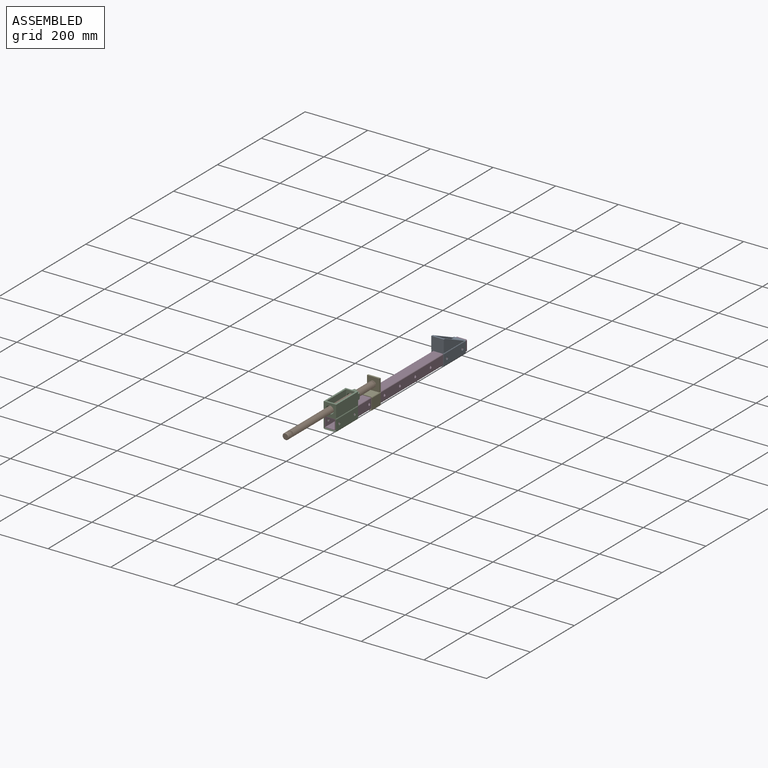
[diagram: assembled view]
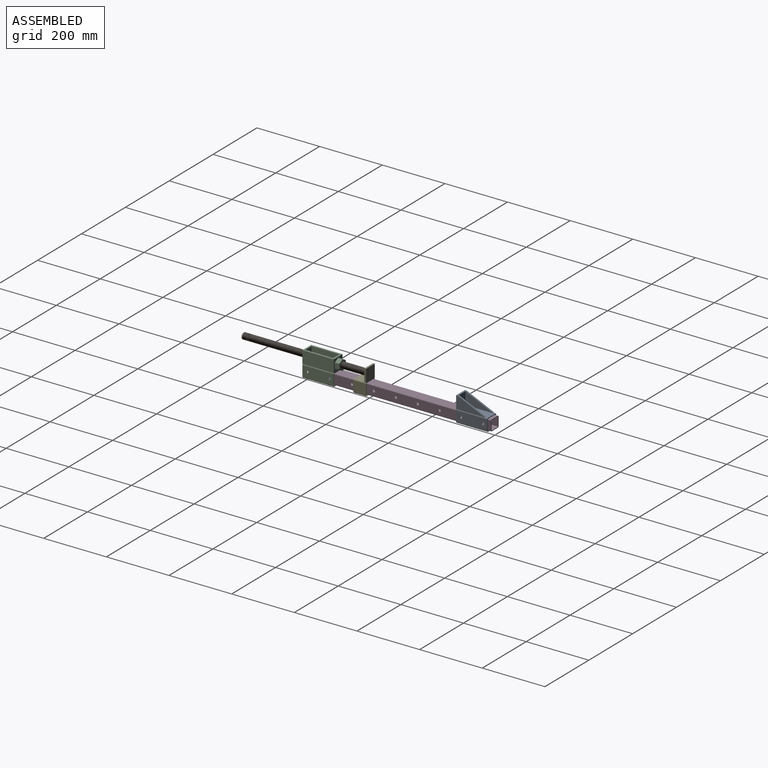
[diagram: assembled view, second angle]
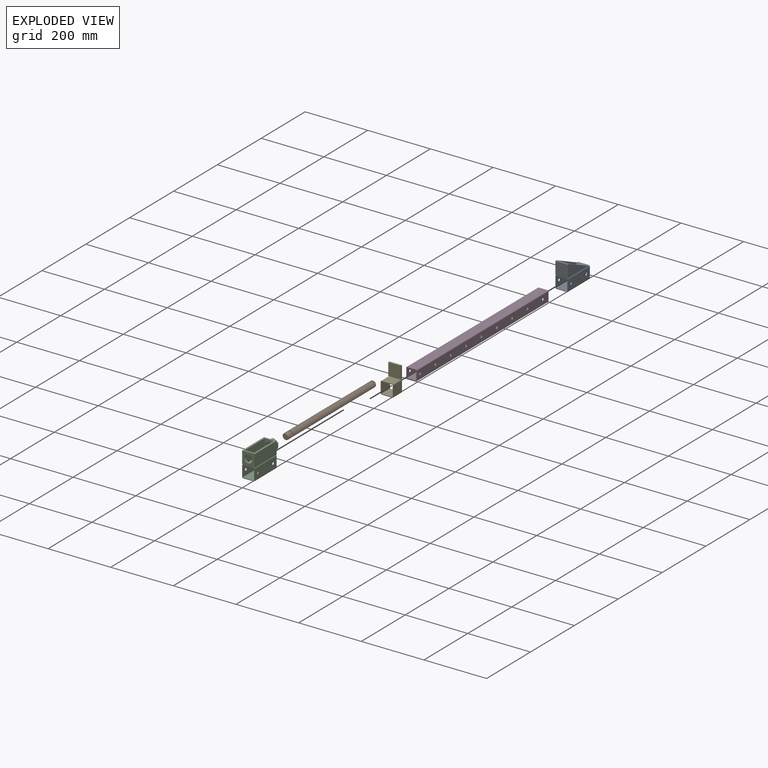
[diagram: exploded view]
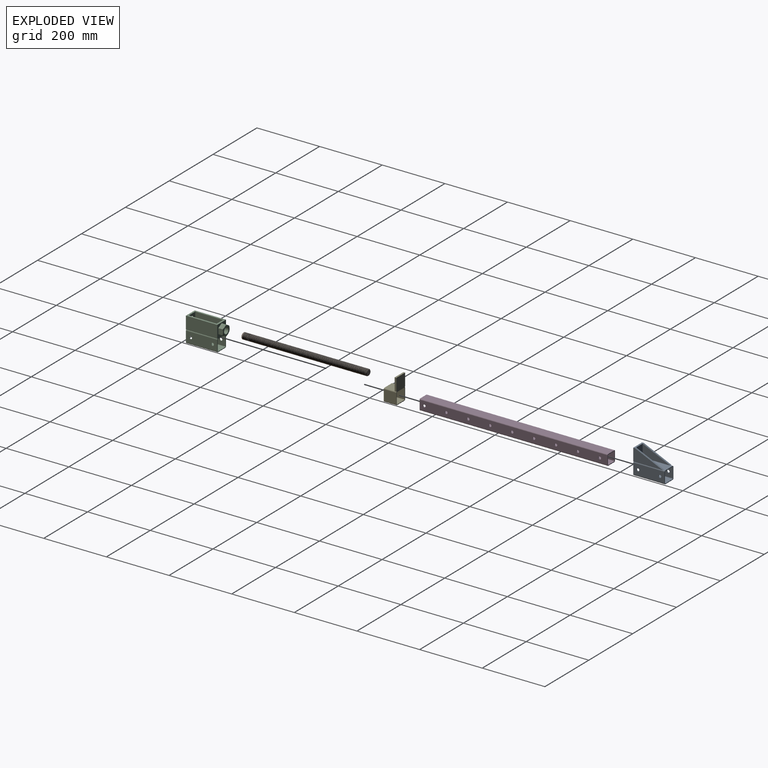
[diagram: exploded view, second angle]
ASSEMBLY  parts=5 mates=5
PART A: 32 faces, bbox 40x100x80 mm
  f0: plane 100x33mm, normal (1,0,0), area 3186.5mm2, adj f1,f15,f16,f17,f28,f29
  f1: cylinder r=3.5mm len=100mm, axis (0,-1,0), area 549.8mm2, adj f0,f2,f16,f17,f18
  f2: plane 94.5x33mm, normal (0,0,1), area 2762.5mm2, adj f1,f3,f16,f21,f22,f23,f30,f31
  f3: cylinder r=3.5mm len=100mm, axis (0,-1,0), area 549.8mm2, adj f2,f4,f16,f17,f25
  f4: plane 100x33mm, normal (-1,0,0), area 3186.5mm2, adj f3,f5,f16,f17,f26,f27
  f5: cylinder r=3.5mm len=100mm, axis (0,-1,0), area 549.8mm2, adj f4,f6,f16,f17
  f6: plane 100x33mm, normal (0,0,-1), area 3300mm2, adj f5,f15,f16,f17
  f7: cylinder r=1.5mm len=100mm, axis (0,-1,0), area 235.6mm2, adj f8,f14,f16,f17
  f8: plane 100x33mm, normal (-1,0,0), area 3186.5mm2, adj f7,f9,f16,f17,f28,f29
  f9: cylinder r=1.5mm len=100mm, axis (0,-1,0), area 235.6mm2, adj f8,f10,f16,f17
  f10: plane 100x33mm, normal (0,0,1), area 3300mm2, adj f9,f11,f16,f17
  f11: cylinder r=1.5mm len=100mm, axis (0,-1,0), area 235.6mm2, adj f10,f12,f16,f17
  f12: plane 100x33mm, normal (1,0,0), area 3186.5mm2, adj f11,f13,f16,f17,f26,f27
  f13: cylinder r=1.5mm len=100mm, axis (0,-1,0), area 235.6mm2, adj f12,f14,f16,f17
  f14: plane 100x33mm, normal (0,0,-1), area 3300mm2, adj f7,f13,f16,f17
  f15: cylinder r=3.5mm len=100mm, axis (0,-1,0), area 549.8mm2, adj f0,f6,f16,f17
  f16: plane 40x40mm, normal (0,1,0), area 295.4mm2, adj f0,f1,f2,f3,f4,f5,f6,f7
  f17: plane 80x40mm, normal (0,-1,0), area 1895.4mm2, adj f0,f1,f3,f4,f5,f6,f7,f8
  f18: plane 94.5x3.5mm, normal (0,0,-1), area 330.8mm2, adj f1,f17,f20,f31
  f19: plane 94.5x40mm, normal (-1,0,0), area 2000mm2, adj f17,f24,f25,f30
  f20: plane 94.5x40mm, normal (1,0,0), area 2000mm2, adj f17,f18,f24,f31
  f21: plane 89x40mm, normal (-1,0,0), area 1780mm2, adj f2,f22,f31
  f22: plane 40x29mm, normal (0,1,0), area 1160mm2, adj f2,f21,f23,f24
  f23: plane 89x40mm, normal (1,0,0), area 1780mm2, adj f2,f22,f30
  f24: plane 40x5.5mm, normal (0,0,1), area 220mm2, adj f17,f19,f20,f22,f30,f31
  f25: plane 94.5x3.5mm, normal (0,0,-1), area 330.8mm2, adj f3,f17,f19,f30
  f26: cylinder r=4.25mm len=8.5mm, axis (-1,0,0), area 53.4mm2, adj f4,f12
  f27: cylinder r=4.25mm len=8.5mm, axis (-1,0,0), area 53.4mm2, adj f4,f12
  f28: cylinder r=4.25mm len=8.5mm, axis (-1,0,0), area 53.4mm2, adj f0,f8
  f29: cylinder r=4.25mm len=8.5mm, axis (-1,0,0), area 53.4mm2, adj f0,f8
  f30: plane 89x40mm, normal (0,0.41,0.91), area 536.7mm2, adj f2,f19,f23,f24,f25
  f31: plane 89x40mm, normal (0,0.41,0.91), area 536.7mm2, adj f2,f18,f20,f21,f24
PART B: 25 faces, bbox 22.1x401.4x22.7 mm
  f0: cylinder r=10mm len=20mm, axis (0,-1,0), area 10.4mm2, adj f8,f15,f23
  f1: cylinder r=10mm len=20mm, axis (0,-1,0), area 10.9mm2, adj f9,f16,f23
  f2: cylinder r=10mm len=20mm, axis (0,-1,0), area 195.8mm2, adj f3,f9,f17,f21,f22
  f3: cylinder r=10mm len=9.91mm, axis (0,-1,0), area 2.7mm2, adj f2,f9,f17,f23
  f4: cylinder r=10mm len=20mm, axis (0,-1,0), area 10.7mm2, adj f7,f14,f23
  f5: cylinder r=10mm len=382.88mm, axis (0,-1,0), area -2666.6mm2, adj f6,f14,f20,f23
  f6: bspline ~386.82x22.59mm, area 17315.9mm2, adj f5,f10,f19,f20,f23
  f7: bspline ~22.59x21.96mm, area 98.2mm2, adj f4,f11,f23
  f8: bspline ~22.59x21.96mm, area 96.5mm2, adj f0,f12,f23
  f9: bspline ~22.59x21.96mm, area 218.5mm2, adj f1,f2,f3,f13,f22,f23
  f10: bspline ~386.6x18.75mm, area 3334.8mm2, adj f6,f14,f19,f23
  f11: bspline ~18.75x18.23mm, area 18.3mm2, adj f7,f15,f23
  f12: bspline ~18.75x18.23mm, area 18.3mm2, adj f8,f16,f23
  f13: bspline ~18.75x18.23mm, area 42mm2, adj f9,f17,f22,f23
  f14: bspline ~387.23x22.59mm, area 17427.3mm2, adj f4,f5,f10,f19,f20,f23
  f15: bspline ~22.59x21.96mm, area 96.3mm2, adj f0,f11,f23
  f16: bspline ~22.59x21.96mm, area 98.9mm2, adj f1,f12,f23
  f17: bspline ~22.59x21.96mm, area 220.9mm2, adj f2,f3,f13,f22,f23
  f18: plane 17x17mm, normal (0,1,0), area 227mm2, adj f21
  f19: plane 17.14x16.84mm, normal (0,-1,0), area 224.5mm2, adj f6,f10,f14,f20
  f20: cone r=8.5mm half-angle=45deg, axis (0,1,0), area 51.1mm2, adj f5,f6,f14,f19
  f21: cone r=10mm half-angle=45deg, axis (0,-1,0), area 123.3mm2, adj f2,f18
  f22: plane 2.33x1.82mm, normal (0,0,1), area 2.3mm2, adj f2,f9,f13,f17
  f23: cylinder r=4.25mm len=9.91mm, axis (-1,0,0), area 233.2mm2, adj f0,f1,f3,f4,f5,f6,f7,f8
  f24: plane 8.5x8.5mm, normal (1,0,0), area 56.7mm2, adj f23
PART C: 48 faces, bbox 40x115x80 mm
  f0: plane 30x30mm, normal (0,-1,0), area 392.7mm2, adj f39,f42,f43,f44,f45,f46,f47
  f1: plane 100x33mm, normal (1,0,0), area 3186.5mm2, adj f2,f15,f16,f17,f20,f21
  f2: cylinder r=3.5mm len=100mm, axis (0,-1,0), area 549.8mm2, adj f1,f16,f17,f22
  f3: cylinder r=3.5mm len=100mm, axis (0,-1,0), area 549.8mm2, adj f4,f16,f17,f30
  f4: plane 100x33mm, normal (-1,0,0), area 3186.5mm2, adj f3,f5,f16,f17,f18,f19
  f5: cylinder r=3.5mm len=100mm, axis (0,-1,0), area 549.8mm2, adj f4,f6,f16,f17
  f6: plane 100x33mm, normal (0,0,-1), area 3300mm2, adj f5,f15,f16,f17
  f7: cylinder r=1.5mm len=100mm, axis (0,-1,0), area 235.6mm2, adj f8,f14,f16,f17
  f8: plane 100x33mm, normal (-1,0,0), area 3186.5mm2, adj f7,f9,f16,f17,f20,f21
  f9: cylinder r=1.5mm len=100mm, axis (0,-1,0), area 235.6mm2, adj f8,f10,f16,f17
  f10: plane 100x33mm, normal (0,0,1), area 3300mm2, adj f9,f11,f16,f17
  f11: cylinder r=1.5mm len=100mm, axis (0,-1,0), area 235.6mm2, adj f10,f12,f16,f17
  f12: plane 100x33mm, normal (1,0,0), area 3186.5mm2, adj f11,f13,f16,f17,f18,f19
  f13: cylinder r=1.5mm len=100mm, axis (0,-1,0), area 235.6mm2, adj f12,f14,f16,f17
  f14: plane 100x33mm, normal (0,0,-1), area 3300mm2, adj f7,f13,f16,f17
  f15: cylinder r=3.5mm len=100mm, axis (0,-1,0), area 549.8mm2, adj f1,f6,f16,f17
  f16: plane 80x40mm, normal (0,1,0), area 1404.5mm2, adj f1,f2,f3,f4,f5,f6,f7,f8
  f17: plane 80x40mm, normal (0,-1,0), area 1116mm2, adj f1,f2,f3,f4,f5,f6,f7,f8
  f18: cylinder r=4.25mm len=8.5mm, axis (-1,0,0), area 53.4mm2, adj f4,f12
  f19: cylinder r=4.25mm len=8.5mm, axis (-1,0,0), area 53.4mm2, adj f4,f12
  f20: cylinder r=4.25mm len=8.5mm, axis (-1,0,0), area 53.4mm2, adj f1,f8
  f21: cylinder r=4.25mm len=8.5mm, axis (-1,0,0), area 53.4mm2, adj f1,f8
  f22: plane 100x3.5mm, normal (0,0,-1), area 350mm2, adj f2,f16,f17,f27
  f23: plane 40x29mm, normal (0,-1,0), area 669.1mm2, adj f24,f28,f29,f31,f33
  f24: plane 89x40mm, normal (-1,0,0), area 3560mm2, adj f23,f25,f29,f31
  f25: plane 40x29mm, normal (0,1,0), area 669.1mm2, adj f24,f28,f29,f31,f32
  f26: plane 100x40mm, normal (-1,0,0), area 4000mm2, adj f16,f17,f29,f30
  f27: plane 100x40mm, normal (1,0,0), area 4000mm2, adj f16,f17,f22,f29
  f28: plane 89x40mm, normal (1,0,0), area 3560mm2, adj f23,f25,f29,f31
  f29: plane 100x40mm, normal (0,0,1), area 1419mm2, adj f16,f17,f23,f24,f25,f26,f27,f28
  f30: plane 100x3.5mm, normal (0,0,-1), area 350mm2, adj f3,f16,f17,f26
  f31: plane 89x29mm, normal (0,0,1), area 2581mm2, adj f23,f24,f25,f28
  f32: cylinder r=12.5mm len=25mm, axis (0,-1,0), area 432mm2, adj f25,f41
  f33: cylinder r=12.5mm len=25mm, axis (0,-1,0), area 432mm2, adj f16,f23
  f34: plane 15x15mm, normal (0.5,0,-0.87), area 251.8mm2, adj f17,f35,f40,f43,f47
  f35: plane 17.33x15mm, normal (1,0,0), area 251.8mm2, adj f17,f34,f36,f46,f47
  f36: plane 15x15mm, normal (0.5,0,0.87), area 251.8mm2, adj f17,f35,f37,f45,f46
  f37: plane 15x15mm, normal (-0.5,0,0.87), area 251.8mm2, adj f17,f36,f38,f44,f45
  f38: plane 17.33x15mm, normal (-1,0,0), area 251.8mm2, adj f17,f37,f40,f42,f44
  f39: cylinder r=10mm len=20mm, axis (0,1,0), area 942.5mm2, adj f0,f41
  f40: plane 15x15mm, normal (-0.5,0,-0.87), area 251.8mm2, adj f17,f34,f38,f42,f43
  f41: plane 25x25mm, normal (0,1,0), area 176.7mm2, adj f32,f39
  f42: cone r=20mm half-angle=60deg, axis (0,1,0), area 14mm2, adj f0,f38,f40
  f43: cone r=20mm half-angle=60deg, axis (0,1,0), area 14mm2, adj f0,f34,f40
  f44: cone r=20mm half-angle=60deg, axis (0,1,0), area 14mm2, adj f0,f37,f38
  f45: cone r=20mm half-angle=60deg, axis (0,1,0), area 14mm2, adj f0,f36,f37
  f46: cone r=20mm half-angle=60deg, axis (0,1,0), area 14mm2, adj f0,f35,f36
  f47: cone r=20mm half-angle=60deg, axis (0,1,0), area 14mm2, adj f0,f34,f35
PART D: 36 faces, bbox 34x600x34 mm
  f0: plane 600x28mm, normal (0,0,-1), area 16800mm2, adj f1,f15,f16,f17
  f1: cylinder r=3mm len=600mm, axis (0,-1,0), area 2827.4mm2, adj f0,f2,f16,f17
  f2: plane 600x28mm, normal (1,0,0), area 16289.3mm2, adj f1,f3,f16,f17,f27,f28,f29,f30
  f3: cylinder r=3mm len=600mm, axis (0,-1,0), area 2827.4mm2, adj f2,f4,f16,f17
  f4: plane 600x28mm, normal (0,0,1), area 16800mm2, adj f3,f5,f16,f17
  f5: cylinder r=3mm len=600mm, axis (0,-1,0), area 2827.4mm2, adj f4,f6,f16,f17
  f6: plane 600x28mm, normal (-1,0,0), area 16289.3mm2, adj f5,f15,f16,f17,f18,f19,f20,f21
  f7: cylinder r=1mm len=600mm, axis (0,-1,0), area 942.5mm2, adj f8,f14,f16,f17
  f8: plane 600x28mm, normal (-1,0,0), area 16289.3mm2, adj f7,f9,f16,f17,f27,f28,f29,f30
  f9: cylinder r=1mm len=600mm, axis (0,-1,0), area 942.5mm2, adj f8,f10,f16,f17
  f10: plane 600x28mm, normal (0,0,1), area 16800mm2, adj f9,f11,f16,f17
  f11: cylinder r=1mm len=600mm, axis (0,-1,0), area 942.5mm2, adj f10,f12,f16,f17
  f12: plane 600x28mm, normal (1,0,0), area 16289.3mm2, adj f11,f13,f16,f17,f18,f19,f20,f21
  f13: cylinder r=1mm len=600mm, axis (0,-1,0), area 942.5mm2, adj f12,f14,f16,f17
  f14: plane 600x28mm, normal (0,0,-1), area 16800mm2, adj f7,f13,f16,f17
  f15: cylinder r=3mm len=600mm, axis (0,-1,0), area 2827.4mm2, adj f0,f6,f16,f17
  f16: plane 34x34mm, normal (0,1,0), area 249.1mm2, adj f0,f1,f2,f3,f4,f5,f6,f7
  f17: plane 34x34mm, normal (0,-1,0), area 249.1mm2, adj f0,f1,f2,f3,f4,f5,f6,f7
  f18: cylinder r=4.25mm len=8.5mm, axis (-1,0,0), area 53.4mm2, adj f6,f12
  f19: cylinder r=4.25mm len=8.5mm, axis (-1,0,0), area 53.4mm2, adj f6,f12
  f20: cylinder r=4.25mm len=8.5mm, axis (-1,0,0), area 53.4mm2, adj f6,f12
  f21: cylinder r=4.25mm len=8.5mm, axis (-1,0,0), area 53.4mm2, adj f6,f12
  f22: cylinder r=4.25mm len=8.5mm, axis (-1,0,0), area 53.4mm2, adj f6,f12
  f23: cylinder r=4.25mm len=8.5mm, axis (-1,0,0), area 53.4mm2, adj f6,f12
  f24: cylinder r=4.25mm len=8.5mm, axis (-1,0,0), area 53.4mm2, adj f6,f12
  f25: cylinder r=4.25mm len=8.5mm, axis (-1,0,0), area 53.4mm2, adj f6,f12
  f26: cylinder r=4.25mm len=8.5mm, axis (-1,0,0), area 53.4mm2, adj f6,f12
  f27: cylinder r=4.25mm len=8.5mm, axis (-1,0,0), area 53.4mm2, adj f2,f8
  f28: cylinder r=4.25mm len=8.5mm, axis (-1,0,0), area 53.4mm2, adj f2,f8
  f29: cylinder r=4.25mm len=8.5mm, axis (-1,0,0), area 53.4mm2, adj f2,f8
  f30: cylinder r=4.25mm len=8.5mm, axis (-1,0,0), area 53.4mm2, adj f2,f8
  f31: cylinder r=4.25mm len=8.5mm, axis (-1,0,0), area 53.4mm2, adj f2,f8
  f32: cylinder r=4.25mm len=8.5mm, axis (-1,0,0), area 53.4mm2, adj f2,f8
  f33: cylinder r=4.25mm len=8.5mm, axis (-1,0,0), area 53.4mm2, adj f2,f8
  f34: cylinder r=4.25mm len=8.5mm, axis (-1,0,0), area 53.4mm2, adj f2,f8
  f35: cylinder r=4.25mm len=8.5mm, axis (-1,0,0), area 53.4mm2, adj f2,f8
PART E: 24 faces, bbox 40x40x80 mm
  f0: plane 34.5x33mm, normal (0,0,1), area 1138.5mm2, adj f2,f3,f16,f23
  f1: plane 40x33mm, normal (1,0,0), area 1320mm2, adj f2,f15,f16,f17
  f2: cylinder r=3.5mm len=40mm, axis (0,-1,0), area 219.9mm2, adj f0,f1,f16,f17,f20
  f3: cylinder r=3.5mm len=40mm, axis (0,-1,0), area 219.9mm2, adj f0,f4,f16,f17,f18
  f4: plane 40x33mm, normal (-1,0,0), area 1320mm2, adj f3,f5,f16,f17
  f5: cylinder r=3.5mm len=40mm, axis (0,-1,0), area 219.9mm2, adj f4,f6,f16,f17
  f6: plane 40x33mm, normal (0,0,-1), area 1320mm2, adj f5,f15,f16,f17
  f7: cylinder r=1.5mm len=40mm, axis (0,-1,0), area 94.2mm2, adj f8,f14,f16,f17
  f8: plane 40x33mm, normal (-1,0,0), area 1320mm2, adj f7,f9,f16,f17
  f9: cylinder r=1.5mm len=40mm, axis (0,-1,0), area 94.2mm2, adj f8,f10,f16,f17
  f10: plane 40x33mm, normal (0,0,1), area 1320mm2, adj f9,f11,f16,f17
  f11: cylinder r=1.5mm len=40mm, axis (0,-1,0), area 94.2mm2, adj f10,f12,f16,f17
  f12: plane 40x33mm, normal (1,0,0), area 1320mm2, adj f11,f13,f16,f17
  f13: cylinder r=1.5mm len=40mm, axis (0,-1,0), area 94.2mm2, adj f12,f14,f16,f17
  f14: plane 40x33mm, normal (0,0,-1), area 1320mm2, adj f7,f13,f16,f17
  f15: cylinder r=3.5mm len=40mm, axis (0,-1,0), area 219.9mm2, adj f1,f6,f16,f17
  f16: plane 40x40mm, normal (0,1,0), area 295.4mm2, adj f0,f1,f2,f3,f4,f5,f6,f7
  f17: plane 80x40mm, normal (0,-1,0), area 1895.4mm2, adj f1,f2,f3,f4,f5,f6,f7,f8
  f18: plane 5.5x3.5mm, normal (0,0,-1), area 19.2mm2, adj f3,f17,f19,f23
  f19: plane 40x5.5mm, normal (-1,0,0), area 220mm2, adj f17,f18,f22,f23
  f20: plane 5.5x3.5mm, normal (0,0,-1), area 19.3mm2, adj f2,f17,f21,f23
  f21: plane 40x5.5mm, normal (1,0,0), area 220mm2, adj f17,f20,f22,f23
  f22: plane 40x5.5mm, normal (0,0,1), area 220mm2, adj f17,f19,f21,f23
  f23: plane 40x40mm, normal (0,1,0), area 1600mm2, adj f0,f18,f19,f20,f21,f22
PLACE A t=(-20,490.18,-3)mm
PLACE B rot(axis=(0,0,-1),180deg) t=(0,196.94,56)mm
PLACE C rot(axis=(0,0,1),180deg) t=(20,99.51,-4)mm
PLACE D t=(-17,0,0)mm
PLACE E rot(axis=(0,0,-1),180deg) t=(20,202.44,-4)mm
MATE slider B.f0 <-> C.f32  axis (0,1,0) through (0,196.94,56)mm
MATE slider D.f16 <-> E.f16  axis (0,1,0) through (0,600,34)mm
MATE slider C.f16 <-> D.f17  axis (0,-1,0) through (0,-0.49,34)mm
MATE slider D.f16 <-> A.f16  axis (0,1,0) through (0,600,17)mm
MATE fastened E.f23 <-> B.f0  axis (0,-1,0) through (0,196.94,56)mm
